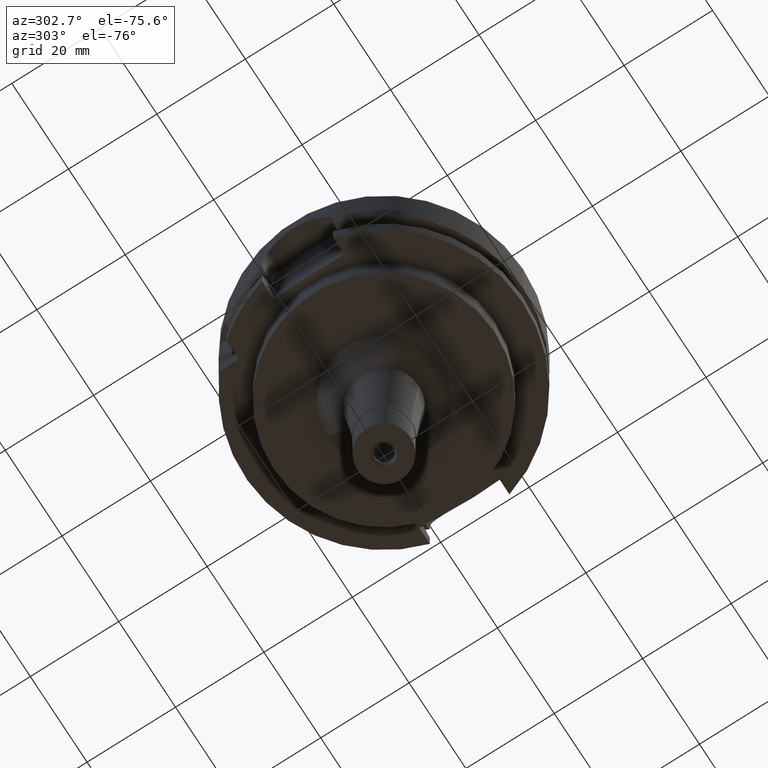
[diagram: clean part render]
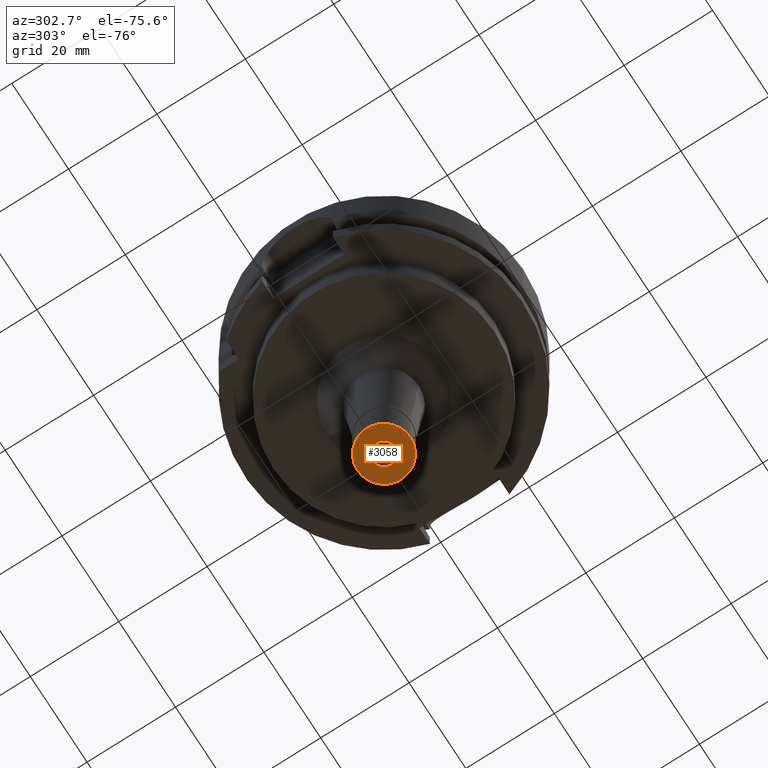
[diagram: same view with one face highlighted and labeled with its STEP entity id]
A machine part, auxiliary view. The second image highlights one B-rep face of the part: STEP entity #3058.
In plain terms, the highlighted planar face has unit normal (0, 0, 1).
Its self-contained STEP definition (entity closure, byte-faithful):
#8 = PLANE ( 'NONE',  #4356 ) ;
#149 = DIRECTION ( 'NONE',  ( 0.0000000000000000000, -1.000000000000000000, 0.0000000000000000000 ) ) ;
#610 = ORIENTED_EDGE ( 'NONE', *, *, #1684, .F. ) ;
#628 = VERTEX_POINT ( 'NONE', #764 ) ;
#638 = EDGE_CURVE ( 'NONE', #5182, #1912, #1035, .T. ) ;
#764 = CARTESIAN_POINT ( 'NONE',  ( 0.0000000000000000000, 6.000000000000000000, -14.50000000000000000 ) ) ;
#800 = DIRECTION ( 'NONE',  ( 0.0000000000000000000, 1.000000000000000000, 0.0000000000000000000 ) ) ;
#875 = AXIS2_PLACEMENT_3D ( 'NONE', #1645, #5597, #800 ) ;
#893 = EDGE_LOOP ( 'NONE', ( #4463, #610 ) ) ;
#1035 = CIRCLE ( 'NONE', #4227, 2.550000000000000266 ) ;
#1331 = EDGE_CURVE ( 'NONE', #628, #5179, #3435, .T. ) ;
#1601 = CIRCLE ( 'NONE', #3345, 6.000000000000000000 ) ;
#1645 = CARTESIAN_POINT ( 'NONE',  ( 0.0000000000000000000, 0.0000000000000000000, -14.50000000000000000 ) ) ;
#1684 = EDGE_CURVE ( 'NONE', #5179, #628, #1601, .T. ) ;
#1699 = DIRECTION ( 'NONE',  ( 0.0000000000000000000, 1.000000000000000000, 0.0000000000000000000 ) ) ;
#1912 = VERTEX_POINT ( 'NONE', #3338 ) ;
#2213 = DIRECTION ( 'NONE',  ( 0.0000000000000000000, 0.0000000000000000000, -1.000000000000000000 ) ) ;
#2553 = CARTESIAN_POINT ( 'NONE',  ( 0.0000000000000000000, -6.000000000000000000, -14.50000000000000000 ) ) ;
#3047 = CARTESIAN_POINT ( 'NONE',  ( 0.0000000000000000000, 0.0000000000000000000, -14.50000000000000000 ) ) ;
#3058 = ADVANCED_FACE ( 'NONE', ( #3483, #4737 ), #8, .F. ) ;
#3237 = AXIS2_PLACEMENT_3D ( 'NONE', #3047, #2213, #4786 ) ;
#3309 = CARTESIAN_POINT ( 'NONE',  ( 0.0000000000000000000, 0.0000000000000000000, -14.50000000000000000 ) ) ;
#3338 = CARTESIAN_POINT ( 'NONE',  ( 0.0000000000000000000, -2.550000000000000266, -14.50000000000000000 ) ) ;
#3345 = AXIS2_PLACEMENT_3D ( 'NONE', #3309, #4042, #149 ) ;
#3435 = CIRCLE ( 'NONE', #875, 6.000000000000000000 ) ;
#3446 = CARTESIAN_POINT ( 'NONE',  ( 0.0000000000000000000, 2.550000000000000266, -14.50000000000000000 ) ) ;
#3483 = FACE_OUTER_BOUND ( 'NONE', #893, .T. ) ;
#3683 = EDGE_CURVE ( 'NONE', #1912, #5182, #5052, .T. ) ;
#3880 = DIRECTION ( 'NONE',  ( 0.0000000000000000000, 0.0000000000000000000, -1.000000000000000000 ) ) ;
#3971 = ORIENTED_EDGE ( 'NONE', *, *, #638, .F. ) ;
#4042 = DIRECTION ( 'NONE',  ( 0.0000000000000000000, 0.0000000000000000000, 1.000000000000000000 ) ) ;
#4227 = AXIS2_PLACEMENT_3D ( 'NONE', #4246, #3880, #1699 ) ;
#4246 = CARTESIAN_POINT ( 'NONE',  ( 0.0000000000000000000, 0.0000000000000000000, -14.50000000000000000 ) ) ;
#4281 = EDGE_LOOP ( 'NONE', ( #3971, #5285 ) ) ;
#4306 = CARTESIAN_POINT ( 'NONE',  ( 0.0000000000000000000, 0.0000000000000000000, -14.50000000000000000 ) ) ;
#4356 = AXIS2_PLACEMENT_3D ( 'NONE', #4306, #5220, #4792 ) ;
#4463 = ORIENTED_EDGE ( 'NONE', *, *, #1331, .F. ) ;
#4737 = FACE_BOUND ( 'NONE', #4281, .T. ) ;
#4786 = DIRECTION ( 'NONE',  ( 0.0000000000000000000, -1.000000000000000000, 0.0000000000000000000 ) ) ;
#4792 = DIRECTION ( 'NONE',  ( 1.000000000000000000, 0.0000000000000000000, 0.0000000000000000000 ) ) ;
#5052 = CIRCLE ( 'NONE', #3237, 2.550000000000000266 ) ;
#5179 = VERTEX_POINT ( 'NONE', #2553 ) ;
#5182 = VERTEX_POINT ( 'NONE', #3446 ) ;
#5220 = DIRECTION ( 'NONE',  ( 0.0000000000000000000, 0.0000000000000000000, 1.000000000000000000 ) ) ;
#5285 = ORIENTED_EDGE ( 'NONE', *, *, #3683, .F. ) ;
#5597 = DIRECTION ( 'NONE',  ( 0.0000000000000000000, 0.0000000000000000000, 1.000000000000000000 ) ) ;